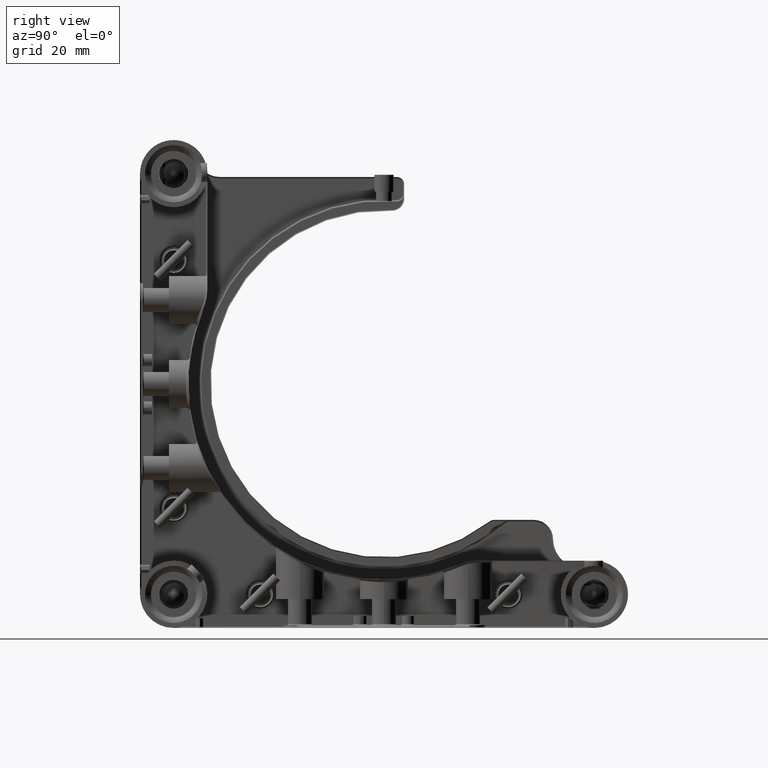
[diagram: clean part render]
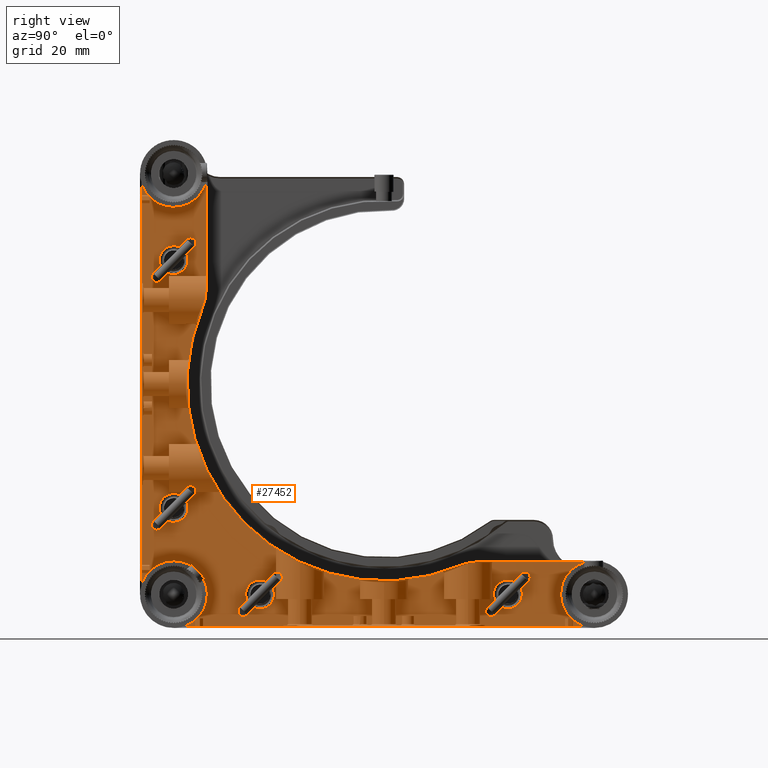
[diagram: same view with one face highlighted and labeled with its STEP entity id]
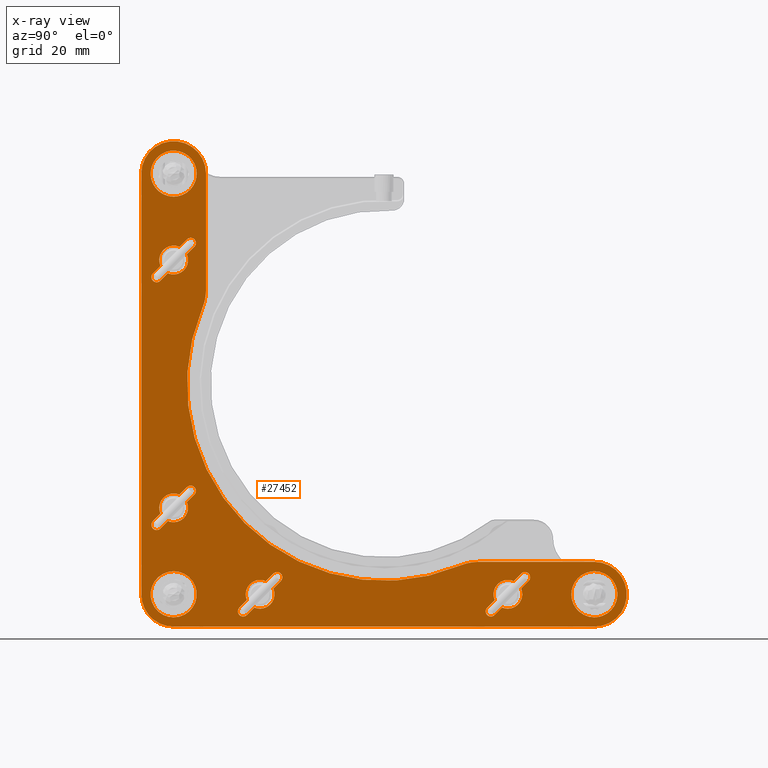
[diagram: x-ray of the same camera — body ghosted, the highlighted face saturated]
A machine part, right view. The second image highlights one B-rep face of the part: STEP entity #27452.
The next image is the same camera in x-ray: the body ghosted, the highlighted face saturated — about 0% of this face is hidden behind the body in this view.
In plain terms, the highlighted planar face has unit normal (1, -0, 0).
Its self-contained STEP definition (entity closure, byte-faithful):
#144 = CARTESIAN_POINT ( 'NONE',  ( 9.000000000000001776, -39.16495325955084184, 42.53464478704680118 ) ) ;
#155 = ORIENTED_EDGE ( 'NONE', *, *, #26908, .F. ) ;
#191 = CARTESIAN_POINT ( 'NONE',  ( 9.000000000000001776, -46.89339297775916293, 47.47687309403420386 ) ) ;
#276 = EDGE_CURVE ( 'NONE', #53183, #41756, #13680, .T. ) ;
#425 = DIRECTION ( 'NONE',  ( 0.000000000000000000, 0.7071067811865474617, 0.7071067811865474617 ) ) ;
#436 = LINE ( 'NONE', #41613, #51903 ) ;
#449 = CARTESIAN_POINT ( 'NONE',  ( 9.000000000000005329, 41.88248374071367408, -48.20335701574560971 ) ) ;
#457 = CARTESIAN_POINT ( 'NONE',  ( 8.999999999999998224, -47.42814838427305801, 46.96002419961592977 ) ) ;
#504 = ORIENTED_EDGE ( 'NONE', *, *, #23801, .F. ) ;
#543 = VERTEX_POINT ( 'NONE', #45472 ) ;
#716 = ORIENTED_EDGE ( 'NONE', *, *, #19475, .F. ) ;
#727 = CARTESIAN_POINT ( 'NONE',  ( 9.000000000000000000, 39.24483749748917205, -42.28274232388636733 ) ) ;
#880 = DIRECTION ( 'NONE',  ( -1.000000000000000000, -0.000000000000000000, -0.000000000000000000 ) ) ;
#1008 = CARTESIAN_POINT ( 'NONE',  ( 9.000000000000001776, 43.04521729324599022, -48.55787298063744828 ) ) ;
#1101 = CIRCLE ( 'NONE', #46046, 9.749999999999987566 ) ;
#1128 = EDGE_CURVE ( 'NONE', #4560, #4560, #19110, .T. ) ;
#1260 = CARTESIAN_POINT ( 'NONE',  ( 9.000000000000001776, 42.28267712745807927, -48.35513669995520303 ) ) ;
#1278 = EDGE_CURVE ( 'NONE', #40300, #49358, #27760, .T. ) ;
#1296 = EDGE_CURVE ( 'NONE', #34503, #28745, #15822, .T. ) ;
#1539 = CARTESIAN_POINT ( 'NONE',  ( 9.000000000000005329, 39.28939002376065304, -42.15765566731933944 ) ) ;
#1825 = EDGE_CURVE ( 'NONE', #3215, #42144, #35786, .T. ) ;
#2202 = DIRECTION ( 'NONE',  ( 1.000000000000000000, -0.000000000000000000, -0.000000000000000000 ) ) ;
#2221 = AXIS2_PLACEMENT_3D ( 'NONE', #42801, #22242, #21708 ) ;
#2368 = AXIS2_PLACEMENT_3D ( 'NONE', #16276, #44177, #44443 ) ;
#2472 = VERTEX_POINT ( 'NONE', #41372 ) ;
#2818 = CARTESIAN_POINT ( 'NONE',  ( 9.000000000000001776, -41.04228355337244238, 30.11335136523792499 ) ) ;
#2887 = CARTESIAN_POINT ( 'NONE',  ( 9.000000000000000000, 47.90625889879009236, -41.30900324797921996 ) ) ;
#2926 = EDGE_LOOP ( 'NONE', ( #44886, #34426, #21636, #14178, #10595, #19440, #504, #32431 ) ) ;
#3146 = CARTESIAN_POINT ( 'NONE',  ( 8.999999999957708496, -43.79999999999999005, -43.79999999999999716 ) ) ;
#3162 = CARTESIAN_POINT ( 'NONE',  ( 9.000000000000001776, -40.12312690596061771, 46.89339297774837689 ) ) ;
#3215 = VERTEX_POINT ( 'NONE', #17354 ) ;
#3260 = DIRECTION ( 'NONE',  ( -1.000000000000000000, -0.000000000000000000, -0.000000000000000000 ) ) ;
#3402 = EDGE_LOOP ( 'NONE', ( #33825, #34091, #31864, #716, #35022, #30516, #11598, #19675 ) ) ;
#3414 = DIRECTION ( 'NONE',  ( 0.000000000000000000, 0.000000000000000000, 1.000000000000000000 ) ) ;
#3415 = CARTESIAN_POINT ( 'NONE',  ( 9.000000000000001776, 48.60003370129511069, -44.10501534892983955 ) ) ;
#3470 = CARTESIAN_POINT ( 'NONE',  ( 9.000000000000003553, -48.23252553049448466, 41.95795846814047536 ) ) ;
#3530 = DIRECTION ( 'NONE',  ( 0.000000000000000000, 0.000000000000000000, -1.000000000000000000 ) ) ;
#3689 = CARTESIAN_POINT ( 'NONE',  ( 9.000000000000005329, -42.60049071363845030, 39.11233871830010855 ) ) ;
#3736 = CARTESIAN_POINT ( 'NONE',  ( 9.000000000000003553, -47.72515901195925636, 41.03593831967504002 ) ) ;
#3740 = AXIS2_PLACEMENT_3D ( 'NONE', #5998, #6270, #43374 ) ;
#3837 = CARTESIAN_POINT ( 'NONE',  ( 8.999999999957708496, 43.79999999999999005, -50.55000000003386873 ) ) ;
#3888 = ORIENTED_EDGE ( 'NONE', *, *, #47574, .F. ) ;
#3945 = CARTESIAN_POINT ( 'NONE',  ( 9.000000000000001776, -39.35207602064202348, 45.60453809197165498 ) ) ;
#3963 = CARTESIAN_POINT ( 'NONE',  ( 9.000000000000001776, 0.000000000000000000, -37.05000000000000426 ) ) ;
#3996 = CARTESIAN_POINT ( 'NONE',  ( 9.000000000000001776, -46.96002419962027119, 40.17185161573122798 ) ) ;
#4183 = EDGE_CURVE ( 'NONE', #9033, #37297, #1101, .T. ) ;
#4263 = CARTESIAN_POINT ( 'NONE',  ( 9.000000000000003553, -47.63647525525808391, 46.70368393890445446 ) ) ;
#4304 = CARTESIAN_POINT ( 'NONE',  ( 9.000000000000000000, 45.49578809074685637, -39.30948000422325350 ) ) ;
#4316 = VERTEX_POINT ( 'NONE', #46280 ) ;
#4363 = AXIS2_PLACEMENT_3D ( 'NONE', #48232, #27410, #10634 ) ;
#4526 = CARTESIAN_POINT ( 'NONE',  ( 9.000000000000003553, 40.12312690596768761, -46.89339297775919135 ) ) ;
#4560 = VERTEX_POINT ( 'NONE', #12960 ) ;
#4765 = CARTESIAN_POINT ( 'NONE',  ( 9.000000000000001776, -25.80000000000000071, -43.79999999999999716 ) ) ;
#4788 = CARTESIAN_POINT ( 'NONE',  ( 8.999999999999998224, 39.36747446950346330, -45.64204153185659152 ) ) ;
#4953 = EDGE_CURVE ( 'NONE', #37297, #20197, #27474, .T. ) ;
#5328 = EDGE_CURVE ( 'NONE', #31634, #16050, #38665, .T. ) ;
#5331 = ORIENTED_EDGE ( 'NONE', *, *, #1296, .F. ) ;
#5336 = CARTESIAN_POINT ( 'NONE',  ( 9.000000000000005329, 41.44984402866380435, -47.98613209606590146 ) ) ;
#5469 = DIRECTION ( 'NONE',  ( 0.000000000000000000, 0.000000000000000000, 1.000000000000000000 ) ) ;
#5592 = CARTESIAN_POINT ( 'NONE',  ( 9.000000000000001776, 39.04206804209258763, -43.04536631365352406 ) ) ;
#5799 = FACE_BOUND ( 'NONE', #3402, .T. ) ;
#5867 = CARTESIAN_POINT ( 'NONE',  ( 9.000000000000001776, 41.95795846814080932, -39.36747446950420226 ) ) ;
#5998 = CARTESIAN_POINT ( 'NONE',  ( 9.000000000000001776, 0.000000000000000000, 0.000000000000000000 ) ) ;
#6054 = CIRCLE ( 'NONE', #42388, 6.750000000034832581 ) ;
#6139 = EDGE_LOOP ( 'NONE', ( #3888, #32675 ) ) ;
#6195 = CARTESIAN_POINT ( 'NONE',  ( 9.000000000000001776, 21.48664863476207287, -46.55771644662753772 ) ) ;
#6268 = EDGE_LOOP ( 'NONE', ( #22048, #36378, #49631, #25477, #48532, #37163, #44828, #26243, #29286, #19680 ) ) ;
#6270 = DIRECTION ( 'NONE',  ( -1.000000000000000000, -0.000000000000000000, -0.000000000000000000 ) ) ;
#6303 = CARTESIAN_POINT ( 'NONE',  ( 9.000000000000001776, -43.79999999999999716, 48.59999999999998010 ) ) ;
#6399 = EDGE_CURVE ( 'NONE', #40895, #34503, #35959, .T. ) ;
#6549 = CARTESIAN_POINT ( 'NONE',  ( 9.000000000000001776, -43.79999999999997584, 25.79999999999998295 ) ) ;
#6625 = CIRCLE ( 'NONE', #42966, 3.000000000000002665 ) ;
#6685 = CARTESIAN_POINT ( 'NONE',  ( 9.000000000000001776, 47.72515901195745869, -41.03593831967326366 ) ) ;
#6761 = LINE ( 'NONE', #19496, #15424 ) ;
#6939 = VERTEX_POINT ( 'NONE', #47095 ) ;
#6953 = CARTESIAN_POINT ( 'NONE',  ( 9.000000000000003553, 46.96002419962433549, -40.17185161573529939 ) ) ;
#6999 = CARTESIAN_POINT ( 'NONE',  ( 8.999999999995324629, -50.55000000000465832, 43.79999999999999716 ) ) ;
#7228 = CARTESIAN_POINT ( 'NONE',  ( 9.000000000000003553, -39.24483749748919337, 42.28274232387133225 ) ) ;
#7325 = DIRECTION ( 'NONE',  ( 0.000000000000000000, 6.308085367188368350E-15, -1.000000000000000000 ) ) ;
#7476 = CARTESIAN_POINT ( 'NONE',  ( 9.000000000000001776, 47.98613209607501062, -46.15015597131931457 ) ) ;
#7489 = CARTESIAN_POINT ( 'NONE',  ( 9.000000000000003553, -39.96352474476218930, 40.89631606107098349 ) ) ;
#7536 = CARTESIAN_POINT ( 'NONE',  ( 9.000000000000001776, -45.49578809074411367, 39.30948000422324640 ) ) ;
#7705 = ORIENTED_EDGE ( 'NONE', *, *, #23499, .F. ) ;
#7757 = CARTESIAN_POINT ( 'NONE',  ( 9.000000000000003553, -39.44796540603163493, 45.82769825396186292 ) ) ;
#7800 = CARTESIAN_POINT ( 'NONE',  ( 9.000000000000000000, -47.86285425349738176, 46.35733753558471903 ) ) ;
#7818 = CARTESIAN_POINT ( 'NONE',  ( 9.000000000000001776, -43.79999999999999716, 38.99999999999998579 ) ) ;
#7858 = CIRCLE ( 'NONE', #45046, 1.100000000000003642 ) ;
#7887 = CARTESIAN_POINT ( 'NONE',  ( 8.999999999999998224, -37.80886699507391313, 15.85842288970792957 ) ) ;
#8013 = CARTESIAN_POINT ( 'NONE',  ( 9.000000000000001776, -39.36747446950244012, 45.64204153185502832 ) ) ;
#8062 = CARTESIAN_POINT ( 'NONE',  ( 8.999999999999998224, -48.29052809198631735, 45.49576763370798460 ) ) ;
#8165 = ORIENTED_EDGE ( 'NONE', *, *, #50066, .F. ) ;
#8324 = CARTESIAN_POINT ( 'NONE',  ( 9.000000000000001776, -48.15203459395956997, 41.77230174602532742 ) ) ;
#8496 = ORIENTED_EDGE ( 'NONE', *, *, #48875, .F. ) ;
#8589 = CARTESIAN_POINT ( 'NONE',  ( 9.000000000000005329, 39.96352474477053818, -40.89631606106048878 ) ) ;
#8595 = CARTESIAN_POINT ( 'NONE',  ( 9.000000000000001776, -44.99950928638634906, 48.48766128169988576 ) ) ;
#8813 = CARTESIAN_POINT ( 'NONE',  ( 9.000000000000001776, -48.11335136523793921, -28.55771644662753772 ) ) ;
#8828 = DIRECTION ( 'NONE',  ( 0.000000000000000000, 0.000000000000000000, -1.000000000000000000 ) ) ;
#9033 = VERTEX_POINT ( 'NONE', #7887 ) ;
#9402 = CARTESIAN_POINT ( 'NONE',  ( 9.000000000000003553, 42.15762074066132925, -48.31059615344170055 ) ) ;
#9410 = CARTESIAN_POINT ( 'NONE',  ( 9.000000000000001776, -25.80000000000000071, -43.79999999999999716 ) ) ;
#9570 = ORIENTED_EDGE ( 'NONE', *, *, #43843, .F. ) ;
#9670 = CARTESIAN_POINT ( 'NONE',  ( 9.000000000000001776, 39.34403521605486276, -45.58457882223946456 ) ) ;
#9720 = VERTEX_POINT ( 'NONE', #2818 ) ;
#9873 = FACE_BOUND ( 'NONE', #6139, .T. ) ;
#9891 = LINE ( 'NONE', #42926, #50022 ) ;
#10148 = FACE_BOUND ( 'NONE', #2926, .T. ) ;
#10350 = CARTESIAN_POINT ( 'NONE',  ( 8.999999999999994671, -46.80000000000001137, 19.62963321104090753 ) ) ;
#10424 = FACE_BOUND ( 'NONE', #43444, .T. ) ;
#10490 = AXIS2_PLACEMENT_3D ( 'NONE', #13662, #42094, #30722 ) ;
#10546 = DIRECTION ( 'NONE',  ( 0.000000000000000000, 0.7071067811865467956, 0.7071067811865483499 ) ) ;
#10595 = ORIENTED_EDGE ( 'NONE', *, *, #24481, .F. ) ;
#10634 = DIRECTION ( 'NONE',  ( 0.000000000000000000, -6.308085367188368350E-15, -1.000000000000000000 ) ) ;
#10670 = ORIENTED_EDGE ( 'NONE', *, *, #21203, .F. ) ;
#10737 = LINE ( 'NONE', #44031, #18830 ) ;
#10741 = DIRECTION ( 'NONE',  ( 0.000000000000000000, -6.308085367188427515E-15, -1.000000000000000000 ) ) ;
#10757 = CARTESIAN_POINT ( 'NONE',  ( 9.000000000000000000, 48.20908927408731870, -41.90188335450945800 ) ) ;
#10809 = LINE ( 'NONE', #14625, #24995 ) ;
#10842 = CARTESIAN_POINT ( 'NONE',  ( 9.000000000000001776, -42.60424202370613500, -23.04860710509574417 ) ) ;
#11029 = CARTESIAN_POINT ( 'NONE',  ( 9.000000000000001776, 45.82769825396555774, -48.15203459396317953 ) ) ;
#11056 = DIRECTION ( 'NONE',  ( 0.000000000000000000, -0.7071067811865460184, -0.7071067811865490160 ) ) ;
#11073 = VERTEX_POINT ( 'NONE', #7818 ) ;
#11259 = AXIS2_PLACEMENT_3D ( 'NONE', #33554, #46257, #36635 ) ;
#11302 = CARTESIAN_POINT ( 'NONE',  ( 9.000000000000003553, 47.31115672473098499, -40.52290536758920325 ) ) ;
#11512 = EDGE_CURVE ( 'NONE', #42702, #46870, #47155, .T. ) ;
#11561 = CARTESIAN_POINT ( 'NONE',  ( 9.000000000000001776, 48.59993259740977578, -43.18996930214026975 ) ) ;
#11577 = CARTESIAN_POINT ( 'NONE',  ( 9.000000000000001776, -40.90257084495528517, 39.97218537656482340 ) ) ;
#11598 = ORIENTED_EDGE ( 'NONE', *, *, #35204, .F. ) ;
#11619 = CARTESIAN_POINT ( 'NONE',  ( 9.000000000000003553, -45.31732287253473146, 39.24486330004474866 ) ) ;
#11821 = CARTESIAN_POINT ( 'NONE',  ( 9.000000000000003553, 48.27692062594665146, -45.53134199748117084 ) ) ;
#11880 = CARTESIAN_POINT ( 'NONE',  ( 9.000000000000001776, -48.24792397935637212, 41.99546190802598034 ) ) ;
#11913 = ORIENTED_EDGE ( 'NONE', *, *, #14301, .F. ) ;
#12081 = DIRECTION ( 'NONE',  ( 1.000000000000000000, -0.000000000000000000, -0.000000000000000000 ) ) ;
#12094 = CARTESIAN_POINT ( 'NONE',  ( 9.000000000000000000, -42.05197810077571319, 48.27043719876827055 ) ) ;
#12139 = CARTESIAN_POINT ( 'NONE',  ( 9.000000000000001776, -46.49441184835821872, 47.77323823138280545 ) ) ;
#12354 = CARTESIAN_POINT ( 'NONE',  ( 9.000000000000001776, -39.69374110120877219, 46.29099675201847219 ) ) ;
#12398 = CARTESIAN_POINT ( 'NONE',  ( 9.000000000000003553, -48.60003370129512490, 44.10501534893707287 ) ) ;
#12655 = CARTESIAN_POINT ( 'NONE',  ( 9.000000000000001776, 43.49489949656178567, -48.59999999999998721 ) ) ;
#12661 = CARTESIAN_POINT ( 'NONE',  ( 9.000000000000001776, -46.56406168032306425, 47.72515901196112509 ) ) ;
#12739 = DIRECTION ( 'NONE',  ( 0.000000000000000000, -3.154042683594203897E-15, -1.000000000000000000 ) ) ;
#12924 = CARTESIAN_POINT ( 'NONE',  ( 9.000000000000003553, 39.73714574649545739, -41.24266246442402206 ) ) ;
#12960 = CARTESIAN_POINT ( 'NONE',  ( 9.000000000000001776, -43.79999999999999716, -48.59999999999999432 ) ) ;
#13033 = EDGE_LOOP ( 'NONE', ( #51260 ) ) ;
#13069 = CARTESIAN_POINT ( 'NONE',  ( 9.000000000000001776, -43.79999999999997584, 25.79999999999998295 ) ) ;
#13166 = DIRECTION ( 'NONE',  ( -1.000000000000000000, -0.000000000000000000, -0.000000000000000000 ) ) ;
#13189 = CARTESIAN_POINT ( 'NONE',  ( 9.000000000000001776, 39.69540583706331205, -41.31023680278016741 ) ) ;
#13662 = CARTESIAN_POINT ( 'NONE',  ( 9.000000000000001776, 0.000000000000000000, 0.000000000000000000 ) ) ;
#13672 = DIRECTION ( 'NONE',  ( 0.000000000000000000, 0.000000000000000000, -1.000000000000000000 ) ) ;
#13680 = CIRCLE ( 'NONE', #42202, 1.099999999999989875 ) ;
#13747 = EDGE_CURVE ( 'NONE', #16050, #13915, #37622, .T. ) ;
#13763 = VECTOR ( 'NONE', #49502, 1000.000000000000114 ) ;
#13775 = CARTESIAN_POINT ( 'NONE',  ( 9.000000000000000000, 44.55478270675759234, -39.04212701936253183 ) ) ;
#13846 = VERTEX_POINT ( 'NONE', #6999 ) ;
#13915 = VERTEX_POINT ( 'NONE', #18942 ) ;
#14014 = CARTESIAN_POINT ( 'NONE',  ( 9.000000000000001776, 43.79999999999999716, -38.99999999999999289 ) ) ;
#14053 = CARTESIAN_POINT ( 'NONE',  ( 9.000000000000001776, -26.99575797629385221, -46.55139289490426080 ) ) ;
#14057 = CARTESIAN_POINT ( 'NONE',  ( 9.000000000000001776, 26.99575797629386287, -41.04860710509574062 ) ) ;
#14178 = ORIENTED_EDGE ( 'NONE', *, *, #1278, .F. ) ;
#14301 = EDGE_CURVE ( 'NONE', #19985, #53036, #51204, .T. ) ;
#14414 = DIRECTION ( 'NONE',  ( -1.000000000000000000, -0.000000000000000000, -0.000000000000000000 ) ) ;
#14485 = FACE_OUTER_BOUND ( 'NONE', #6268, .T. ) ;
#14526 = VERTEX_POINT ( 'NONE', #33708 ) ;
#14556 = CARTESIAN_POINT ( 'NONE',  ( 9.000000000000000000, 43.18944224894781314, -39.00000000000000000 ) ) ;
#14625 = CARTESIAN_POINT ( 'NONE',  ( 9.000000000000001776, -21.48664863476205866, -41.04228355337246370 ) ) ;
#14707 = DIRECTION ( 'NONE',  ( 0.000000000000000000, 0.000000000000000000, -1.000000000000000000 ) ) ;
#14827 = CARTESIAN_POINT ( 'NONE',  ( 9.000000000000000000, 41.77230174602620849, -39.44796540603664425 ) ) ;
#14835 = CARTESIAN_POINT ( 'NONE',  ( 9.000000000000007105, 47.90459416293620620, -46.28976319721872557 ) ) ;
#14842 = EDGE_CURVE ( 'NONE', #25425, #53183, #15807, .T. ) ;
#14982 = CARTESIAN_POINT ( 'NONE',  ( 9.000000000000000000, -42.28267712746526286, 48.35513669995520303 ) ) ;
#15036 = EDGE_CURVE ( 'NONE', #26585, #9033, #37386, .T. ) ;
#15095 = CARTESIAN_POINT ( 'NONE',  ( 9.000000000000005329, 45.93798152562526127, -39.49703878017812997 ) ) ;
#15218 = CARTESIAN_POINT ( 'NONE',  ( 9.000000000000001776, -41.04860710509571931, 26.99575797629383089 ) ) ;
#15363 = CARTESIAN_POINT ( 'NONE',  ( 9.000000000000003553, 46.29099675202127884, -47.90625889878725729 ) ) ;
#15410 = EDGE_CURVE ( 'NONE', #45511, #44009, #17256, .T. ) ;
#15424 = VECTOR ( 'NONE', #52777, 1000.000000000000114 ) ;
#15650 = CARTESIAN_POINT ( 'NONE',  ( 9.000000000000001776, -41.51817982242488370, 39.57155509360772783 ) ) ;
#15807 = LINE ( 'NONE', #28251, #40924 ) ;
#15822 = LINE ( 'NONE', #32326, #16509 ) ;
#15897 = CARTESIAN_POINT ( 'NONE',  ( 9.000000000000001776, 47.77323823137924563, -41.10558815163734891 ) ) ;
#15908 = CARTESIAN_POINT ( 'NONE',  ( 9.000000000000003553, -39.97218537655346182, 46.69742915503189096 ) ) ;
#15948 = CARTESIAN_POINT ( 'NONE',  ( 9.000000000000001776, -48.20335701575051246, 45.71751625927454654 ) ) ;
#16024 = VERTEX_POINT ( 'NONE', #36407 ) ;
#16050 = VERTEX_POINT ( 'NONE', #16073 ) ;
#16073 = CARTESIAN_POINT ( 'NONE',  ( 9.000000000000001776, 24.60424202370613855, -46.55139289490426080 ) ) ;
#16166 = CARTESIAN_POINT ( 'NONE',  ( 9.000000000000001776, -39.04206804209259474, 43.04536631361913379 ) ) ;
#16170 = DIRECTION ( 'NONE',  ( 0.000000000000000000, 6.308085367188447236E-15, -1.000000000000000000 ) ) ;
#16210 = CARTESIAN_POINT ( 'NONE',  ( 9.000000000000001776, -46.28976319722274013, 39.69540583706518078 ) ) ;
#16276 = CARTESIAN_POINT ( 'NONE',  ( 9.000000000000001776, 25.80000000000000071, -43.79999999999999716 ) ) ;
#16388 = EDGE_CURVE ( 'NONE', #20197, #13846, #21893, .T. ) ;
#16429 = CARTESIAN_POINT ( 'NONE',  ( 9.000000000000003553, -39.69540583707149040, 41.31023680276862819 ) ) ;
#16477 = CARTESIAN_POINT ( 'NONE',  ( 9.000000000000000000, -45.93798152560888326, 39.49703878016741498 ) ) ;
#16509 = VECTOR ( 'NONE', #28266, 1000.000000000000114 ) ;
#16609 = EDGE_CURVE ( 'NONE', #44009, #45511, #32025, .T. ) ;
#16690 = CARTESIAN_POINT ( 'NONE',  ( 9.000000000000001776, -39.39091072591180875, 45.69811664548876706 ) ) ;
#16738 = CARTESIAN_POINT ( 'NONE',  ( 9.000000000000003553, -46.29099675202959929, 47.90625889878285903 ) ) ;
#16773 = CARTESIAN_POINT ( 'NONE',  ( 9.000000000000001776, 45.54802189922312294, -39.32956280123094928 ) ) ;
#16993 = CARTESIAN_POINT ( 'NONE',  ( 9.000000000000000000, 40.70660702224071059, -40.12312690597153164 ) ) ;
#17000 = CARTESIAN_POINT ( 'NONE',  ( 9.000000000000003553, -47.31115672473301714, 40.52290536759124251 ) ) ;
#17193 = VECTOR ( 'NONE', #34695, 1000.000000000000114 ) ;
#17256 = B_SPLINE_CURVE_WITH_KNOTS ( 'NONE', 3,
 ( #34310, #12655, #1008, #34589, #1260, #9402, #25652, #45945, #42436, #449, #25386, #5336, #25120, #17269, #38119, #42706, #17531, #4526, #34044, #30259, #50527, #46752, #17796, #21873, #41885, #4788, #29173, #9670, #46211, #33782, #26196, #5592, #41629, #727, #1539, #22128, #38646, #21337, #50266, #18076, #45674, #13189, #12924, #8589, #21059, #37572, #16993, #29447, #29716, #30524, #34868, #51086, #14827, #18612, #5867, #30795, #38917, #39994, #14556, #14014 ),
 .UNSPECIFIED., .F., .F.,
 ( 4, 1, 1, 1, 1, 2, 2, 1, 2, 2, 2, 1, 2, 2, 1, 1, 1, 2, 2, 2, 1, 1, 1, 1, 2, 2, 1, 2, 2, 2, 1, 2, 2, 1, 1, 1, 2, 2, 4 ),
 ( 0.000000000000000000, 0.06250000000001212919, 0.09375000000001761091, 0.1093750000000210387, 0.1171875000000234396, 0.1210937500000239531, 0.1250000000000244804, 0.1562500000000277001, 0.1718750000000296430, 0.1875000000000315581, 0.2500000000000388023, 0.2812500000000419664, 0.2968750000000434652, 0.3125000000000449085, 0.3437500000000479616, 0.3593750000000485167, 0.3671875000000485723, 0.3710937500000487943, 0.3750000000000490719, 0.5000000000000479616, 0.5625000000000474065, 0.5937500000000472955, 0.6093750000000474065, 0.6171875000000481837, 0.6210937500000478506, 0.6250000000000474065, 0.6562500000000452971, 0.6718750000000436318, 0.6875000000000420775, 0.7500000000000349720, 0.7812500000000305311, 0.7968750000000273115, 0.8125000000000240918, 0.8437500000000178746, 0.8593750000000137668, 0.8671875000000117684, 0.8710937500000114353, 0.8750000000000109912, 1.000000000000000000 ),
 .UNSPECIFIED. ) ;
#17269 = CARTESIAN_POINT ( 'NONE',  ( 9.000000000000001776, 41.24266246442093831, -47.86285425350251188 ) ) ;
#17354 = CARTESIAN_POINT ( 'NONE',  ( 9.000000000000001776, -46.55139289490426080, -26.99575797629386642 ) ) ;
#17454 = VERTEX_POINT ( 'NONE', #19822 ) ;
#17531 = CARTESIAN_POINT ( 'NONE',  ( 9.000000000000000000, 40.28884327526594689, -47.07709463240663439 ) ) ;
#17727 = FACE_BOUND ( 'NONE', #13033, .T. ) ;
#17796 = CARTESIAN_POINT ( 'NONE',  ( 9.000000000000001776, 39.57155509360017476, -46.08182017755787285 ) ) ;
#17945 = DIRECTION ( 'NONE',  ( 0.000000000000000000, -0.7071067811865467956, -0.7071067811865483499 ) ) ;
#17993 = AXIS2_PLACEMENT_3D ( 'NONE', #36234, #24557, #16170 ) ;
#18031 = DIRECTION ( 'NONE',  ( 0.000000000000000000, -0.7071067811865474617, -0.7071067811865474617 ) ) ;
#18076 = CARTESIAN_POINT ( 'NONE',  ( 9.000000000000001776, 39.49703878016362069, -41.66201847439693040 ) ) ;
#18180 = AXIS2_PLACEMENT_3D ( 'NONE', #45214, #24653, #3530 ) ;
#18476 = DIRECTION ( 'NONE',  ( 0.000000000000000000, -6.308085367188447236E-15, -1.000000000000000000 ) ) ;
#18511 = CARTESIAN_POINT ( 'NONE',  ( 9.000000000000005329, -43.49489949657117194, 48.59999999999998721 ) ) ;
#18612 = CARTESIAN_POINT ( 'NONE',  ( 9.000000000000001776, 41.90188335450426393, -39.39091072591475040 ) ) ;
#18718 = VERTEX_POINT ( 'NONE', #29804 ) ;
#18719 = VECTOR ( 'NONE', #36199, 1000.000000000000114 ) ;
#18742 = DIRECTION ( 'NONE',  ( 0.000000000000000000, 2.846725704167071744E-15, 1.000000000000000000 ) ) ;
#18751 = CARTESIAN_POINT ( 'NONE',  ( 9.000000000000001776, -39.48664863476203379, 28.55771644662751996 ) ) ;
#18817 = CARTESIAN_POINT ( 'NONE',  ( 9.000000000000001776, -26.99575797629385221, -46.55139289490426080 ) ) ;
#18830 = VECTOR ( 'NONE', #27250, 1000.000000000000000 ) ;
#18883 = VERTEX_POINT ( 'NONE', #35760 ) ;
#18942 = CARTESIAN_POINT ( 'NONE',  ( 9.000000000000001776, 23.04228355337246370, -48.11335136523793921 ) ) ;
#19030 = DIRECTION ( 'NONE',  ( -1.000000000000000000, -0.000000000000000000, -0.000000000000000000 ) ) ;
#19110 = CIRCLE ( 'NONE', #49321, 4.799999999999998934 ) ;
#19158 = CARTESIAN_POINT ( 'NONE',  ( 9.000000000000001776, 47.86285425349741729, -46.35733753558579906 ) ) ;
#19161 = DIRECTION ( 'NONE',  ( 0.000000000000000000, 1.027984282055026450E-15, 1.000000000000000000 ) ) ;
#19440 = ORIENTED_EDGE ( 'NONE', *, *, #50786, .F. ) ;
#19475 = EDGE_CURVE ( 'NONE', #13915, #47896, #43920, .T. ) ;
#19477 = CARTESIAN_POINT ( 'NONE',  ( 9.000000000000001776, -44.10510050342882948, 38.99999999999997868 ) ) ;
#19496 = CARTESIAN_POINT ( 'NONE',  ( 9.000000000000001776, -44.99575797629385931, -28.55139289490426080 ) ) ;
#19675 = ORIENTED_EDGE ( 'NONE', *, *, #276, .F. ) ;
#19680 = ORIENTED_EDGE ( 'NONE', *, *, #30007, .F. ) ;
#19709 = CARTESIAN_POINT ( 'NONE',  ( 9.000000000000003553, -39.73714574649755349, 41.24266246442139305 ) ) ;
#19788 = ORIENTED_EDGE ( 'NONE', *, *, #25286, .F. ) ;
#19822 = CARTESIAN_POINT ( 'NONE',  ( 9.000000000000003553, 19.62963321104090753, -37.05000000000001137 ) ) ;
#19914 = CARTESIAN_POINT ( 'NONE',  ( 9.000000000000001776, -39.48664863476206222, -23.04228355337246370 ) ) ;
#19963 = CARTESIAN_POINT ( 'NONE',  ( 9.000000000000001776, 47.62781462343671990, -40.90257084495388540 ) ) ;
#19974 = CARTESIAN_POINT ( 'NONE',  ( 9.000000000000000000, -39.28939002376065304, 42.15765566731127478 ) ) ;
#19985 = VERTEX_POINT ( 'NONE', #53159 ) ;
#20018 = CARTESIAN_POINT ( 'NONE',  ( 8.999999999999998224, -44.41055775108736015, 48.59999999999997300 ) ) ;
#20197 = VERTEX_POINT ( 'NONE', #31686 ) ;
#20271 = CARTESIAN_POINT ( 'NONE',  ( 9.000000000000003553, -48.02844490639205333, 41.51817982243107252 ) ) ;
#20486 = CARTESIAN_POINT ( 'NONE',  ( 9.000000000000001776, -39.32307937405312970, 42.06865800251767240 ) ) ;
#20538 = CARTESIAN_POINT ( 'NONE',  ( 9.000000000000003553, -46.15015597132567393, 39.61386790392719348 ) ) ;
#20576 = EDGE_CURVE ( 'NONE', #28745, #42865, #20810, .T. ) ;
#20791 = EDGE_CURVE ( 'NONE', #18718, #35121, #39843, .T. ) ;
#20801 = CARTESIAN_POINT ( 'NONE',  ( 9.000000000000003553, -45.06546697822074776, 39.16499749250328222 ) ) ;
#20810 = CIRCLE ( 'NONE', #4363, 1.100000000000003642 ) ;
#21059 = CARTESIAN_POINT ( 'NONE',  ( 9.000000000000001776, 40.17185161572710683, -40.63997580037747781 ) ) ;
#21065 = CARTESIAN_POINT ( 'NONE',  ( 9.000000000000003553, -45.82769825397646457, 48.15203459395743124 ) ) ;
#21189 = CARTESIAN_POINT ( 'NONE',  ( 8.999999999999994671, -37.05000000000001137, 19.62963321104090042 ) ) ;
#21203 = EDGE_CURVE ( 'NONE', #46870, #9720, #49690, .T. ) ;
#21311 = LINE ( 'NONE', #3963, #25933 ) ;
#21337 = CARTESIAN_POINT ( 'NONE',  ( 9.000000000000001776, 39.32956280123197246, -42.05197810077527976 ) ) ;
#21437 = ORIENTED_EDGE ( 'NONE', *, *, #16609, .F. ) ;
#21636 = ORIENTED_EDGE ( 'NONE', *, *, #43559, .F. ) ;
#21708 = DIRECTION ( 'NONE',  ( 0.000000000000000000, 6.308085367188427515E-15, -1.000000000000000000 ) ) ;
#21873 = CARTESIAN_POINT ( 'NONE',  ( 9.000000000000003553, 39.44796540603456947, -45.82769825396636776 ) ) ;
#21893 = CIRCLE ( 'NONE', #43499, 6.750000000010913936 ) ;
#21924 = CARTESIAN_POINT ( 'NONE',  ( 9.000000000000001776, 24.60424202370613855, -46.55139289490426080 ) ) ;
#22014 = DIRECTION ( 'NONE',  ( 0.000000000000000000, 0.000000000000000000, -1.000000000000000000 ) ) ;
#22036 = VERTEX_POINT ( 'NONE', #25036 ) ;
#22048 = ORIENTED_EDGE ( 'NONE', *, *, #24741, .F. ) ;
#22100 = AXIS2_PLACEMENT_3D ( 'NONE', #13069, #880, #22014 ) ;
#22128 = CARTESIAN_POINT ( 'NONE',  ( 9.000000000000001776, 39.30947190801320801, -42.10423236629617350 ) ) ;
#22242 = DIRECTION ( 'NONE',  ( -1.000000000000000000, -0.000000000000000000, -0.000000000000000000 ) ) ;
#22278 = LINE ( 'NONE', #18751, #25892 ) ;
#22361 = VECTOR ( 'NONE', #29224, 1000.000000000000114 ) ;
#22467 = CARTESIAN_POINT ( 'NONE',  ( 9.000000000000001776, -24.60424202370614566, -41.04860710509574773 ) ) ;
#22508 = LINE ( 'NONE', #10842, #17193 ) ;
#22514 = CIRCLE ( 'NONE', #18180, 3.000000000000002665 ) ;
#22551 = CARTESIAN_POINT ( 'NONE',  ( 8.999999999990647481, -43.79999999999999716, 43.79999999999998295 ) ) ;
#22839 = CARTESIAN_POINT ( 'NONE',  ( 9.000000000000001776, -42.10421190925590196, 48.29051999577673371 ) ) ;
#23013 = CARTESIAN_POINT ( 'NONE',  ( 9.000000000000001776, -28.55771644662753062, -48.11335136523793921 ) ) ;
#23219 = CARTESIAN_POINT ( 'NONE',  ( 8.999999999999998224, 46.69742915504454572, -47.62781462344121053 ) ) ;
#23318 = CARTESIAN_POINT ( 'NONE',  ( 9.000000000000001776, -30.11335136523793210, -46.55771644662753062 ) ) ;
#23490 = CARTESIAN_POINT ( 'NONE',  ( 9.000000000000001776, 48.23252553049705682, -41.95795846814391439 ) ) ;
#23499 = EDGE_CURVE ( 'NONE', #47717, #3215, #32638, .T. ) ;
#23769 = CARTESIAN_POINT ( 'NONE',  ( 9.000000000000001776, -39.30947190801321511, 42.10423236629146260 ) ) ;
#23801 = EDGE_CURVE ( 'NONE', #35121, #16024, #10809, .T. ) ;
#23842 = CARTESIAN_POINT ( 'NONE',  ( 9.000000000000001776, 30.11335136523793210, -41.04228355337245659 ) ) ;
#23990 = CARTESIAN_POINT ( 'NONE',  ( 8.999999999978854248, -43.80000000000000426, -50.55000000002112870 ) ) ;
#24023 = CARTESIAN_POINT ( 'NONE',  ( 9.000000000000001776, 47.07709463240965420, -47.31115672473424638 ) ) ;
#24035 = CARTESIAN_POINT ( 'NONE',  ( 8.999999999999998224, -41.99546190802513479, 39.35207602064357246 ) ) ;
#24075 = CARTESIAN_POINT ( 'NONE',  ( 9.000000000000005329, -45.53135247547614028, 39.32308352089241055 ) ) ;
#24161 = EDGE_CURVE ( 'NONE', #4316, #40895, #22278, .T. ) ;
#24249 = CARTESIAN_POINT ( 'NONE',  ( 9.000000000000001776, -46.55139289490423948, 24.60424202370613145 ) ) ;
#24290 = CARTESIAN_POINT ( 'NONE',  ( 9.000000000000005329, 48.24792397935772215, -41.99546190802778511 ) ) ;
#24303 = CARTESIAN_POINT ( 'NONE',  ( 9.000000000000001776, -40.28884327526189679, 47.07709463240043846 ) ) ;
#24345 = CARTESIAN_POINT ( 'NONE',  ( 9.000000000000001776, -44.55478270673756924, 39.04212701936253183 ) ) ;
#24481 = EDGE_CURVE ( 'NONE', #51784, #40300, #51128, .T. ) ;
#24552 = CARTESIAN_POINT ( 'NONE',  ( 9.000000000000005329, -41.03593831967415895, 39.87484098804349486 ) ) ;
#24557 = DIRECTION ( 'NONE',  ( -1.000000000000000000, -0.000000000000000000, -0.000000000000000000 ) ) ;
#24598 = CARTESIAN_POINT ( 'NONE',  ( 9.000000000000003553, -46.70368393892098879, 39.96352474475844474 ) ) ;
#24653 = DIRECTION ( 'NONE',  ( -1.000000000000000000, -0.000000000000000000, -0.000000000000000000 ) ) ;
#24741 = EDGE_CURVE ( 'NONE', #2472, #17454, #21311, .T. ) ;
#24808 = CARTESIAN_POINT ( 'NONE',  ( 9.000000000000001776, -40.63997580038993362, 47.42814838428535751 ) ) ;
#24859 = CARTESIAN_POINT ( 'NONE',  ( 9.000000000000001776, -48.48759380204807456, 42.60032031705371480 ) ) ;
#24995 = VECTOR ( 'NONE', #31128, 1000.000000000000114 ) ;
#25036 = CARTESIAN_POINT ( 'NONE',  ( 9.000000000000001776, -46.55771644662752351, -30.11335136523793210 ) ) ;
#25089 = DIRECTION ( 'NONE',  ( 1.000000000000000000, -0.000000000000000000, -0.000000000000000000 ) ) ;
#25120 = CARTESIAN_POINT ( 'NONE',  ( 9.000000000000003553, 41.31023680277053955, -47.90459416293040107 ) ) ;
#25286 = EDGE_CURVE ( 'NONE', #40821, #39386, #29403, .T. ) ;
#25386 = CARTESIAN_POINT ( 'NONE',  ( 9.000000000000005329, 41.66201847437771022, -48.10296121982378992 ) ) ;
#25425 = VERTEX_POINT ( 'NONE', #14057 ) ;
#25477 = ORIENTED_EDGE ( 'NONE', *, *, #52262, .F. ) ;
#25652 = CARTESIAN_POINT ( 'NONE',  ( 9.000000000000001776, 42.10421190925363533, -48.29051999577672660 ) ) ;
#25729 = EDGE_CURVE ( 'NONE', #42865, #42702, #436, .T. ) ;
#25892 = VECTOR ( 'NONE', #17945, 1000.000000000000000 ) ;
#25933 = VECTOR ( 'NONE', #49436, 1000.000000000000000 ) ;
#25967 = CARTESIAN_POINT ( 'NONE',  ( 9.000000000000001776, 43.79999999999999716, -38.99999999999999289 ) ) ;
#26196 = CARTESIAN_POINT ( 'NONE',  ( 9.000000000000003553, 38.99996629870289411, -43.49498465108037237 ) ) ;
#26243 = ORIENTED_EDGE ( 'NONE', *, *, #4183, .F. ) ;
#26448 = LINE ( 'NONE', #50792, #26550 ) ;
#26550 = VECTOR ( 'NONE', #35116, 1000.000000000000000 ) ;
#26585 = VERTEX_POINT ( 'NONE', #32306 ) ;
#26749 = VECTOR ( 'NONE', #29422, 1000.000000000000000 ) ;
#26878 = DIRECTION ( 'NONE',  ( 1.000000000000000000, -0.000000000000000000, -0.000000000000000000 ) ) ;
#26908 = EDGE_CURVE ( 'NONE', #9720, #4316, #7858, .T. ) ;
#26978 = ORIENTED_EDGE ( 'NONE', *, *, #6399, .F. ) ;
#27016 = DIRECTION ( 'NONE',  ( 1.000000000000000000, -0.000000000000000000, -0.000000000000000000 ) ) ;
#27250 = DIRECTION ( 'NONE',  ( 0.000000000000000000, 1.000000000000000000, 0.000000000000000000 ) ) ;
#27399 = CARTESIAN_POINT ( 'NONE',  ( 9.000000000000001776, -43.79999999999999716, -25.80000000000000071 ) ) ;
#27410 = DIRECTION ( 'NONE',  ( -1.000000000000000000, -0.000000000000000000, -0.000000000000000000 ) ) ;
#27429 = CARTESIAN_POINT ( 'NONE',  ( 9.000000000000001776, 43.79999999999999716, -48.59999999999998721 ) ) ;
#27452 = ADVANCED_FACE ( 'NONE', ( #30464, #9873, #17727, #14485, #10424, #35062, #10148, #5799 ), #50736, .F. ) ;
#27455 = DIRECTION ( 'NONE',  ( 0.000000000000000000, 0.7071067811865474617, 0.7071067811865474617 ) ) ;
#27474 = LINE ( 'NONE', #52093, #50734 ) ;
#27547 = CARTESIAN_POINT ( 'NONE',  ( 9.000000000000001776, 48.29052809198631024, -45.49576763370626509 ) ) ;
#27574 = CARTESIAN_POINT ( 'NONE',  ( 9.000000000000001776, -50.54999999999998295, 0.000000000000000000 ) ) ;
#27760 = CIRCLE ( 'NONE', #37265, 1.099999999999996758 ) ;
#27816 = CARTESIAN_POINT ( 'NONE',  ( 9.000000000000003553, 48.27043719876811423, -45.54802189922486377 ) ) ;
#27828 = CARTESIAN_POINT ( 'NONE',  ( 9.000000000000005329, -39.11240619795591300, 44.99967968292938281 ) ) ;
#27938 = DIRECTION ( 'NONE',  ( -1.000000000000000000, -0.000000000000000000, -0.000000000000000000 ) ) ;
#28071 = CARTESIAN_POINT ( 'NONE',  ( 9.000000000000000000, 47.42814838426697577, -46.96002419961779140 ) ) ;
#28085 = CARTESIAN_POINT ( 'NONE',  ( 9.000000000000001776, -41.77230174602070178, 39.44796540604024671 ) ) ;
#28127 = CARTESIAN_POINT ( 'NONE',  ( 9.000000000000001776, -43.79999999999999716, 48.59999999999998010 ) ) ;
#28251 = CARTESIAN_POINT ( 'NONE',  ( 9.000000000000001776, 26.99575797629386287, -41.04860710509574773 ) ) ;
#28266 = DIRECTION ( 'NONE',  ( 0.000000000000000000, -0.7071067811865460184, -0.7071067811865490160 ) ) ;
#28341 = CARTESIAN_POINT ( 'NONE',  ( 9.000000000000000000, 45.58458414713201989, -48.25596267520592164 ) ) ;
#28398 = CARTESIAN_POINT ( 'NONE',  ( 9.000000000000000000, -48.27692062594663014, 45.53134199748204480 ) ) ;
#28450 = CARTESIAN_POINT ( 'NONE',  ( 9.000000000000001776, -40.26446609406724519, 29.33553390593271715 ) ) ;
#28473 = CARTESIAN_POINT ( 'NONE',  ( 9.000000000000001776, -22.26446609406725941, -40.26446609406725941 ) ) ;
#28617 = CARTESIAN_POINT ( 'NONE',  ( 9.000000000000003553, -41.10558815164285562, 39.82676176861801309 ) ) ;
#28661 = CARTESIAN_POINT ( 'NONE',  ( 9.000000000000003553, -47.90459416293467854, 46.28976319721914479 ) ) ;
#28745 = VERTEX_POINT ( 'NONE', #38077 ) ;
#28863 = CARTESIAN_POINT ( 'NONE',  ( 9.000000000000003553, -39.00006740259421889, 44.41003069787852553 ) ) ;
#28908 = CARTESIAN_POINT ( 'NONE',  ( 9.000000000000001776, -48.43504674044654479, 45.06535521295031543 ) ) ;
#29173 = CARTESIAN_POINT ( 'NONE',  ( 9.000000000000005329, 39.35207602064257770, -45.60453809197248631 ) ) ;
#29179 = CARTESIAN_POINT ( 'NONE',  ( 8.999999999999998224, -45.44237925933479971, 39.28940384655827245 ) ) ;
#29224 = DIRECTION ( 'NONE',  ( 0.000000000000000000, -0.7071067811865460184, -0.7071067811865490160 ) ) ;
#29286 = ORIENTED_EDGE ( 'NONE', *, *, #15036, .F. ) ;
#29403 = CIRCLE ( 'NONE', #11259, 3.000000000000006217 ) ;
#29422 = DIRECTION ( 'NONE',  ( 0.000000000000000000, 0.000000000000000000, -1.000000000000000000 ) ) ;
#29447 = CARTESIAN_POINT ( 'NONE',  ( 9.000000000000005329, 40.90257084495953421, -39.97218537656202386 ) ) ;
#29635 = ORIENTED_EDGE ( 'NONE', *, *, #15410, .F. ) ;
#29716 = CARTESIAN_POINT ( 'NONE',  ( 9.000000000000003553, 41.03593831967685901, -39.87484098804173271 ) ) ;
#29804 = CARTESIAN_POINT ( 'NONE',  ( 9.000000000000001776, -23.04228355337246370, -39.48664863476206222 ) ) ;
#30007 = EDGE_CURVE ( 'NONE', #17454, #26585, #41944, .T. ) ;
#30259 = CARTESIAN_POINT ( 'NONE',  ( 9.000000000000003553, 39.87484098803982135, -46.56406168032308557 ) ) ;
#30303 = CARTESIAN_POINT ( 'NONE',  ( 9.000000000000003553, 45.06546697823576864, -39.16499749250328932 ) ) ;
#30464 = FACE_BOUND ( 'NONE', #40678, .T. ) ;
#30516 = ORIENTED_EDGE ( 'NONE', *, *, #5328, .F. ) ;
#30518 = DIRECTION ( 'NONE',  ( -1.000000000000000000, -0.000000000000000000, -0.000000000000000000 ) ) ;
#30524 = CARTESIAN_POINT ( 'NONE',  ( 9.000000000000005329, 41.10558815164076663, -39.82676176861939155 ) ) ;
#30722 = DIRECTION ( 'NONE',  ( 0.000000000000000000, 0.000000000000000000, -1.000000000000000000 ) ) ;
#30795 = CARTESIAN_POINT ( 'NONE',  ( 9.000000000000001776, 41.99546190802616508, -39.35207602064294008 ) ) ;
#30835 = EDGE_CURVE ( 'NONE', #22036, #47717, #53229, .T. ) ;
#30959 = CARTESIAN_POINT ( 'NONE',  ( 9.000000000000003553, -42.53453302177927497, 48.43500250749669789 ) ) ;
#30969 = ORIENTED_EDGE ( 'NONE', *, *, #24161, .F. ) ;
#31119 = LINE ( 'NONE', #22467, #51794 ) ;
#31128 = DIRECTION ( 'NONE',  ( 0.000000000000000000, -0.7071067811865474617, -0.7071067811865474617 ) ) ;
#31328 = VERTEX_POINT ( 'NONE', #23990 ) ;
#31338 = CARTESIAN_POINT ( 'NONE',  ( 9.000000000000003553, 46.15015597133852765, -39.61386790393561341 ) ) ;
#31493 = CARTESIAN_POINT ( 'NONE',  ( 9.000000000000003553, -42.15762074066518039, 48.31059615344169345 ) ) ;
#31600 = CARTESIAN_POINT ( 'NONE',  ( 9.000000000000001776, 46.35733753558061210, -39.73714574649846298 ) ) ;
#31631 = LINE ( 'NONE', #27574, #26749 ) ;
#31634 = VERTEX_POINT ( 'NONE', #49043 ) ;
#31661 = CARTESIAN_POINT ( 'NONE',  ( 9.000000000000001776, -43.79999999999999716, 38.99999999999998579 ) ) ;
#31686 = CARTESIAN_POINT ( 'NONE',  ( 8.999999999984751753, -37.05000000001425775, 43.79999999999997584 ) ) ;
#31805 = CARTESIAN_POINT ( 'NONE',  ( 9.000000000000001776, -29.33553390593273136, -47.33553390593272781 ) ) ;
#31864 = ORIENTED_EDGE ( 'NONE', *, *, #43985, .F. ) ;
#31877 = CARTESIAN_POINT ( 'NONE',  ( 9.000000000000003553, 45.64204153185632862, -48.23252553049576363 ) ) ;
#31879 = CARTESIAN_POINT ( 'NONE',  ( 8.999999999957708496, 43.79999999999999716, -43.79999999999999005 ) ) ;
#32025 = B_SPLINE_CURVE_WITH_KNOTS ( 'NONE', 3,
 ( #25967, #46522, #13775, #30303, #50308, #33826, #4304, #37355, #16773, #32395, #15095, #31338, #52159, #31600, #52964, #6953, #11302, #36218, #19963, #6685, #15897, #2887, #36484, #48881, #10757, #23490, #24290, #40528, #44576, #11561, #3415, #40258, #35943, #32146, #48092, #27547, #11821, #27816, #48632, #47830, #7476, #14835, #19158, #35412, #28071, #24023, #52430, #23219, #39735, #40790, #15363, #51895, #11029, #52700, #31877, #44316, #28341, #44842, #40003, #35683 ),
 .UNSPECIFIED., .F., .F.,
 ( 4, 1, 1, 1, 1, 2, 2, 1, 2, 2, 2, 1, 2, 2, 1, 1, 1, 2, 2, 2, 1, 1, 1, 1, 2, 2, 1, 2, 2, 2, 1, 2, 2, 1, 1, 1, 2, 2, 4 ),
 ( 0.000000000000000000, 0.06250000000000840994, 0.09375000000001203204, 0.1093750000000131423, 0.1171875000000137113, 0.1210937500000146549, 0.1250000000000155986, 0.1562500000000167089, 0.1718750000000175693, 0.1875000000000184297, 0.2500000000000193179, 0.2812500000000193179, 0.2968750000000202616, 0.3125000000000211497, 0.3437500000000229816, 0.3593750000000235922, 0.3671875000000242584, 0.3710937500000249800, 0.3750000000000256462, 0.5000000000000353051, 0.5625000000000408562, 0.5937500000000429656, 0.6093750000000438538, 0.6171875000000441869, 0.6210937500000444089, 0.6250000000000445199, 0.6562500000000415223, 0.6718750000000399680, 0.6875000000000384137, 0.7500000000000290878, 0.7812500000000248690, 0.7968750000000227596, 0.8125000000000206501, 0.8437500000000164313, 0.8593750000000148770, 0.8671875000000143219, 0.8710937500000137668, 0.8750000000000131006, 1.000000000000000000 ),
 .UNSPECIFIED. ) ;
#32146 = CARTESIAN_POINT ( 'NONE',  ( 9.000000000000005329, 48.35516250250931591, -45.31725767612147138 ) ) ;
#32159 = CARTESIAN_POINT ( 'NONE',  ( 9.000000000000001776, -40.52290536759021222, 40.28884327527014619 ) ) ;
#32276 = EDGE_CURVE ( 'NONE', #6939, #18883, #6625, .T. ) ;
#32306 = CARTESIAN_POINT ( 'NONE',  ( 9.000000000000007105, 15.85842288970792957, -37.80886699507392024 ) ) ;
#32326 = CARTESIAN_POINT ( 'NONE',  ( 9.000000000000001776, -44.99575797629383800, 23.04860710509572286 ) ) ;
#32395 = CARTESIAN_POINT ( 'NONE',  ( 9.000000000000003553, 45.71751625928803264, -39.39664298425549305 ) ) ;
#32408 = CARTESIAN_POINT ( 'NONE',  ( 9.000000000000005329, -38.99996629870290121, 43.49498465106072587 ) ) ;
#32431 = ORIENTED_EDGE ( 'NONE', *, *, #20791, .F. ) ;
#32454 = AXIS2_PLACEMENT_3D ( 'NONE', #37013, #25089, #49431 ) ;
#32603 = CARTESIAN_POINT ( 'NONE',  ( 9.000000000000001776, -30.11335136523793210, -46.55771644662753062 ) ) ;
#32638 = LINE ( 'NONE', #39987, #18719 ) ;
#32666 = CARTESIAN_POINT ( 'NONE',  ( 9.000000000000001776, -41.44984402867434881, 47.98613209607277952 ) ) ;
#32675 = ORIENTED_EDGE ( 'NONE', *, *, #40359, .F. ) ;
#32716 = CARTESIAN_POINT ( 'NONE',  ( 9.000000000000000000, -46.69742915504033931, 47.62781462344247529 ) ) ;
#32895 = B_SPLINE_CURVE_WITH_KNOTS ( 'NONE', 3,
 ( #6303, #18511, #51515, #30959, #14982, #31493, #22839, #49420, #12094, #44854, #41049, #32666, #48643, #44330, #53492, #24808, #24303, #3162, #15908, #33191, #49156, #12354, #49671, #7757, #16690, #8013, #3945, #36495, #27828, #28863, #32408, #16166, #144, #7228, #19974, #23769, #20486, #40272, #37002, #41315, #44589, #16429, #19709, #7489, #36231, #32159, #52713, #11577, #24552, #28617, #36743, #15650, #28085, #32931, #48897, #24035, #45361, #3689, #40540, #52975 ),
 .UNSPECIFIED., .F., .F.,
 ( 4, 1, 1, 1, 1, 2, 2, 1, 2, 2, 2, 1, 2, 2, 1, 1, 1, 2, 2, 2, 1, 1, 1, 1, 2, 2, 1, 2, 2, 2, 1, 2, 2, 1, 1, 1, 2, 2, 4 ),
 ( 0.000000000000000000, 0.06250000000001459943, 0.09375000000002119138, 0.1093750000000238004, 0.1171875000000244110, 0.1210937500000253964, 0.1250000000000263678, 0.1562500000000354439, 0.1718750000000393574, 0.1875000000000432987, 0.2500000000000593969, 0.2812500000000670575, 0.2968750000000712208, 0.3125000000000754397, 0.3437500000000827671, 0.3593750000000860423, 0.3671875000000870970, 0.3710937500000870415, 0.3750000000000869305, 0.5000000000000872635, 0.5625000000000867084, 0.5937500000000859313, 0.6093750000000852651, 0.6171875000000850431, 0.6210937500000854872, 0.6250000000000859313, 0.6562500000000823785, 0.6718750000000802691, 0.6875000000000780487, 0.7500000000000700551, 0.7812500000000660583, 0.7968750000000645040, 0.8125000000000628386, 0.8437500000000596190, 0.8593750000000582867, 0.8671875000000568434, 0.8710937500000560663, 0.8750000000000552891, 1.000000000000000000 ),
 .UNSPECIFIED. ) ;
#32931 = CARTESIAN_POINT ( 'NONE',  ( 9.000000000000001776, -41.90188335450104518, 39.39091072591681808 ) ) ;
#32978 = CARTESIAN_POINT ( 'NONE',  ( 9.000000000000001776, -48.27043719876831318, 45.54802189922479272 ) ) ;
#33135 = CARTESIAN_POINT ( 'NONE',  ( 9.000000000000001776, 28.55771644662754127, -39.48664863476206932 ) ) ;
#33165 = AXIS2_PLACEMENT_3D ( 'NONE', #27399, #27938, #39866 ) ;
#33191 = CARTESIAN_POINT ( 'NONE',  ( 9.000000000000001776, -39.87484098803626864, 46.56406168031765702 ) ) ;
#33236 = CARTESIAN_POINT ( 'NONE',  ( 9.000000000000001776, -47.98613209607262320, 46.15015597132000380 ) ) ;
#33535 = VERTEX_POINT ( 'NONE', #46769 ) ;
#33554 = CARTESIAN_POINT ( 'NONE',  ( 9.000000000000001776, -43.79999999999999716, -25.80000000000000071 ) ) ;
#33708 = CARTESIAN_POINT ( 'NONE',  ( 9.000000000000001776, -43.79999999999999716, 48.59999999999998010 ) ) ;
#33782 = CARTESIAN_POINT ( 'NONE',  ( 9.000000000000005329, 39.00006740259422600, -44.41003069783925383 ) ) ;
#33825 = ORIENTED_EDGE ( 'NONE', *, *, #14842, .F. ) ;
#33826 = CARTESIAN_POINT ( 'NONE',  ( 9.000000000000003553, 45.44237925933953193, -39.28940384655831508 ) ) ;
#33949 = ORIENTED_EDGE ( 'NONE', *, *, #11512, .F. ) ;
#34044 = CARTESIAN_POINT ( 'NONE',  ( 9.000000000000003553, 39.97218537655901827, -46.69742915504039615 ) ) ;
#34091 = ORIENTED_EDGE ( 'NONE', *, *, #40014, .F. ) ;
#34257 = CARTESIAN_POINT ( 'NONE',  ( 9.000000000000001776, -43.79999999999999716, -43.79999999999999716 ) ) ;
#34310 = CARTESIAN_POINT ( 'NONE',  ( 9.000000000000001776, 43.79999999999999716, -48.59999999999998721 ) ) ;
#34426 = ORIENTED_EDGE ( 'NONE', *, *, #32276, .F. ) ;
#34497 = CARTESIAN_POINT ( 'NONE',  ( 9.000000000000001776, -48.11335136523792499, 23.04228355337245659 ) ) ;
#34503 = VERTEX_POINT ( 'NONE', #44194 ) ;
#34548 = CARTESIAN_POINT ( 'NONE',  ( 9.000000000000001776, -21.48664863476205866, -41.04228355337246370 ) ) ;
#34589 = CARTESIAN_POINT ( 'NONE',  ( 9.000000000000001776, 42.53453302176692574, -48.43500250749669078 ) ) ;
#34695 = DIRECTION ( 'NONE',  ( 0.000000000000000000, 0.7071067811865474617, 0.7071067811865474617 ) ) ;
#34868 = CARTESIAN_POINT ( 'NONE',  ( 9.000000000000001776, 41.30900324797240586, -39.69374110121258781 ) ) ;
#34917 = CARTESIAN_POINT ( 'NONE',  ( 9.000000000000001776, 43.79999999999999716, -38.99999999999999289 ) ) ;
#35022 = ORIENTED_EDGE ( 'NONE', *, *, #13747, .F. ) ;
#35062 = FACE_BOUND ( 'NONE', #38464, .T. ) ;
#35116 = DIRECTION ( 'NONE',  ( 0.000000000000000000, -0.7071067811865467956, -0.7071067811865483499 ) ) ;
#35121 = VERTEX_POINT ( 'NONE', #34548 ) ;
#35139 = DIRECTION ( 'NONE',  ( 0.000000000000000000, -1.156482317317870344E-15, -1.000000000000000000 ) ) ;
#35204 = EDGE_CURVE ( 'NONE', #41756, #31634, #9891, .T. ) ;
#35412 = CARTESIAN_POINT ( 'NONE',  ( 9.000000000000003553, 47.63647525525800575, -46.70368393890024805 ) ) ;
#35683 = CARTESIAN_POINT ( 'NONE',  ( 9.000000000000001776, 43.79999999999999716, -48.59999999999998721 ) ) ;
#35760 = CARTESIAN_POINT ( 'NONE',  ( 9.000000000000001776, -24.60424202370613855, -41.04860710509574062 ) ) ;
#35786 = CIRCLE ( 'NONE', #33165, 3.000000000000006217 ) ;
#35934 = VECTOR ( 'NONE', #425, 1000.000000000000114 ) ;
#35943 = CARTESIAN_POINT ( 'NONE',  ( 9.000000000000001776, 48.43504674044653768, -45.06535521294082969 ) ) ;
#35959 = CIRCLE ( 'NONE', #22100, 3.000000000000002665 ) ;
#36156 = EDGE_CURVE ( 'NONE', #18883, #18718, #31119, .T. ) ;
#36199 = DIRECTION ( 'NONE',  ( 0.000000000000000000, 0.7071067811865506814, 0.7071067811865443531 ) ) ;
#36218 = CARTESIAN_POINT ( 'NONE',  ( 9.000000000000003553, 47.47687309402690659, -40.70660702223353411 ) ) ;
#36231 = CARTESIAN_POINT ( 'NONE',  ( 9.000000000000001776, -40.17185161573330276, 40.63997580037339930 ) ) ;
#36234 = CARTESIAN_POINT ( 'NONE',  ( 9.000000000000001776, 22.26446609406726296, -47.33553390593273491 ) ) ;
#36378 = ORIENTED_EDGE ( 'NONE', *, *, #40652, .F. ) ;
#36402 = CARTESIAN_POINT ( 'NONE',  ( 9.000000000000001776, -44.99575797629385931, -28.55139289490426080 ) ) ;
#36407 = CARTESIAN_POINT ( 'NONE',  ( 9.000000000000001776, -23.04860710509574417, -42.60424202370614921 ) ) ;
#36484 = CARTESIAN_POINT ( 'NONE',  ( 9.000000000000000000, 48.02844490640175223, -41.51817982244410388 ) ) ;
#36495 = CARTESIAN_POINT ( 'NONE',  ( 9.000000000000000000, -39.34403521605484855, 45.58457882223971325 ) ) ;
#36635 = DIRECTION ( 'NONE',  ( 0.000000000000000000, 0.000000000000000000, -1.000000000000000000 ) ) ;
#36743 = CARTESIAN_POINT ( 'NONE',  ( 9.000000000000005329, -41.30900324796823497, 39.69374110121533761 ) ) ;
#36786 = CARTESIAN_POINT ( 'NONE',  ( 9.000000000000003553, -46.35733753558061920, 39.73714574649846298 ) ) ;
#37002 = CARTESIAN_POINT ( 'NONE',  ( 9.000000000000001776, -39.39664298425654465, 41.88248374071147140 ) ) ;
#37013 = CARTESIAN_POINT ( 'NONE',  ( 9.000000000000003553, 19.62963321104090753, -46.80000000000001137 ) ) ;
#37050 = CARTESIAN_POINT ( 'NONE',  ( 9.000000000000003553, -48.20908927408306255, 41.90188335450373813 ) ) ;
#37163 = ORIENTED_EDGE ( 'NONE', *, *, #16388, .F. ) ;
#37265 = AXIS2_PLACEMENT_3D ( 'NONE', #31805, #48293, #48808 ) ;
#37297 = VERTEX_POINT ( 'NONE', #21189 ) ;
#37319 = CARTESIAN_POINT ( 'NONE',  ( 9.000000000000003553, -47.07709463240661307, 47.31115672473514877 ) ) ;
#37355 = CARTESIAN_POINT ( 'NONE',  ( 9.000000000000003553, 45.53135247547756137, -39.32308352089242476 ) ) ;
#37386 = CIRCLE ( 'NONE', #3740, 41.00000000000001421 ) ;
#37572 = CARTESIAN_POINT ( 'NONE',  ( 9.000000000000003553, 40.52290536759331729, -40.28884327526812825 ) ) ;
#37578 = CARTESIAN_POINT ( 'NONE',  ( 9.000000000000001776, -48.25596478394503208, 42.01542117776079266 ) ) ;
#37622 = LINE ( 'NONE', #21924, #22361 ) ;
#38067 = CARTESIAN_POINT ( 'NONE',  ( 9.000000000000001776, -41.04860710509574062, -24.60424202370613855 ) ) ;
#38077 = CARTESIAN_POINT ( 'NONE',  ( 9.000000000000001776, -46.55771644662750930, 21.48664863476204090 ) ) ;
#38119 = CARTESIAN_POINT ( 'NONE',  ( 9.000000000000001776, 40.89631606107283091, -47.63647525523749948 ) ) ;
#38464 = EDGE_LOOP ( 'NONE', ( #8165, #40183, #7705, #45494, #8496, #19788, #9570, #11913 ) ) ;
#38646 = CARTESIAN_POINT ( 'NONE',  ( 9.000000000000001776, 39.32307937405311549, -42.06865800252008114 ) ) ;
#38665 = CIRCLE ( 'NONE', #2368, 3.000000000000002665 ) ;
#38678 = VERTEX_POINT ( 'NONE', #3837 ) ;
#38700 = LINE ( 'NONE', #6195, #50759 ) ;
#38861 = DIRECTION ( 'NONE',  ( -0.000000000000000000, -0.000000000000000000, 1.000000000000000000 ) ) ;
#38917 = CARTESIAN_POINT ( 'NONE',  ( 9.000000000000001776, 42.01541585286720704, -39.34403732479409399 ) ) ;
#39220 = CARTESIAN_POINT ( 'NONE',  ( 9.000000000000001776, -42.60424202370613500, -23.04860710509574417 ) ) ;
#39386 = VERTEX_POINT ( 'NONE', #36402 ) ;
#39405 = CARTESIAN_POINT ( 'NONE',  ( 9.000000000000001776, 21.48664863476207287, -46.55771644662753772 ) ) ;
#39735 = CARTESIAN_POINT ( 'NONE',  ( 9.000000000000003553, 46.56406168032572168, -47.72515901196033639 ) ) ;
#39843 = CIRCLE ( 'NONE', #46733, 1.099999999999996758 ) ;
#39866 = DIRECTION ( 'NONE',  ( 0.000000000000000000, 0.000000000000000000, -1.000000000000000000 ) ) ;
#39987 = CARTESIAN_POINT ( 'NONE',  ( 9.000000000000001776, -48.11335136523793921, -28.55771644662753772 ) ) ;
#39994 = CARTESIAN_POINT ( 'NONE',  ( 9.000000000000005329, 42.60049071364881712, -39.11233871830010855 ) ) ;
#40003 = CARTESIAN_POINT ( 'NONE',  ( 9.000000000000003553, 44.41055775107703596, -48.60000000000000853 ) ) ;
#40014 = EDGE_CURVE ( 'NONE', #33535, #25425, #22514, .T. ) ;
#40183 = ORIENTED_EDGE ( 'NONE', *, *, #1825, .F. ) ;
#40258 = CARTESIAN_POINT ( 'NONE',  ( 9.000000000000001776, 48.55793195790391081, -44.55463368636436883 ) ) ;
#40272 = CARTESIAN_POINT ( 'NONE',  ( 9.000000000000003553, -39.32956280123081427, 42.05197810077694953 ) ) ;
#40300 = VERTEX_POINT ( 'NONE', #23013 ) ;
#40359 = EDGE_CURVE ( 'NONE', #11073, #14526, #43250, .T. ) ;
#40528 = CARTESIAN_POINT ( 'NONE',  ( 9.000000000000000000, 48.25596478394503919, -42.01542117776001106 ) ) ;
#40540 = CARTESIAN_POINT ( 'NONE',  ( 9.000000000000003553, -43.18944224893743922, 38.99999999999999289 ) ) ;
#40578 = CIRCLE ( 'NONE', #53538, 3.000000000000002665 ) ;
#40583 = CARTESIAN_POINT ( 'NONE',  ( 9.000000000000000000, -47.77323823138203096, 41.10558815164107216 ) ) ;
#40652 = EDGE_CURVE ( 'NONE', #38678, #2472, #43305, .T. ) ;
#40678 = EDGE_LOOP ( 'NONE', ( #21437, #29635 ) ) ;
#40790 = CARTESIAN_POINT ( 'NONE',  ( 9.000000000000000000, 46.49441184836238961, -47.77323823138062409 ) ) ;
#40819 = CARTESIAN_POINT ( 'NONE',  ( 9.000000000000001776, -42.60424202370612790, 28.55139289490424304 ) ) ;
#40821 = VERTEX_POINT ( 'NONE', #38067 ) ;
#40844 = CARTESIAN_POINT ( 'NONE',  ( 9.000000000000001776, -45.64204153186015134, 48.23252553049371016 ) ) ;
#40895 = VERTEX_POINT ( 'NONE', #15218 ) ;
#40924 = VECTOR ( 'NONE', #27455, 1000.000000000000114 ) ;
#41049 = CARTESIAN_POINT ( 'NONE',  ( 9.000000000000001776, -41.66201847439112527, 48.10296121983255091 ) ) ;
#41095 = CARTESIAN_POINT ( 'NONE',  ( 9.000000000000003553, -45.54802189922428113, 39.32956280123169535 ) ) ;
#41315 = CARTESIAN_POINT ( 'NONE',  ( 9.000000000000001776, -39.49703878017999159, 41.66201847437386618 ) ) ;
#41368 = CARTESIAN_POINT ( 'NONE',  ( 9.000000000000001776, -48.10296121983233064, 45.93798152560167836 ) ) ;
#41372 = CARTESIAN_POINT ( 'NONE',  ( 8.999999999978852472, 43.79999999999999005, -37.04999999997886562 ) ) ;
#41613 = CARTESIAN_POINT ( 'NONE',  ( 9.000000000000001776, -48.11335136523793210, 23.04228355337245304 ) ) ;
#41629 = CARTESIAN_POINT ( 'NONE',  ( 9.000000000000003553, 39.16495325955084184, -42.53464478707258678 ) ) ;
#41636 = CARTESIAN_POINT ( 'NONE',  ( 9.000000000000001776, -45.58458414713170015, 48.25596267520589322 ) ) ;
#41756 = VERTEX_POINT ( 'NONE', #23842 ) ;
#41885 = CARTESIAN_POINT ( 'NONE',  ( 9.000000000000001776, 39.39091072591354248, -45.69811664549141028 ) ) ;
#41944 = CIRCLE ( 'NONE', #32454, 9.749999999999987566 ) ;
#42094 = DIRECTION ( 'NONE',  ( 1.000000000000000000, -0.000000000000000000, 0.000000000000000000 ) ) ;
#42144 = VERTEX_POINT ( 'NONE', #39220 ) ;
#42202 = AXIS2_PLACEMENT_3D ( 'NONE', #51480, #14414, #18476 ) ;
#42388 = AXIS2_PLACEMENT_3D ( 'NONE', #3146, #12081, #3414 ) ;
#42436 = CARTESIAN_POINT ( 'NONE',  ( 9.000000000000005329, 42.05197810077667953, -48.27043719876892425 ) ) ;
#42702 = VERTEX_POINT ( 'NONE', #24249 ) ;
#42706 = CARTESIAN_POINT ( 'NONE',  ( 9.000000000000001776, 40.63997580038186186, -47.42814838427300828 ) ) ;
#42801 = CARTESIAN_POINT ( 'NONE',  ( 9.000000000000001776, -47.33553390593272781, -29.33553390593273136 ) ) ;
#42865 = VERTEX_POINT ( 'NONE', #34497 ) ;
#42926 = CARTESIAN_POINT ( 'NONE',  ( 9.000000000000001776, 30.11335136523793210, -41.04228355337245659 ) ) ;
#42962 = CARTESIAN_POINT ( 'NONE',  ( 9.000000000000001776, -40.26446609406726651, -22.26446609406725941 ) ) ;
#42966 = AXIS2_PLACEMENT_3D ( 'NONE', #9410, #50272, #35139 ) ;
#43028 = DIRECTION ( 'NONE',  ( 0.000000000000000000, 0.7071067811865483499, 0.7071067811865467956 ) ) ;
#43250 = B_SPLINE_CURVE_WITH_KNOTS ( 'NONE', 3,
 ( #31661, #19477, #24345, #20801, #11619, #29179, #7536, #24075, #41095, #48939, #16477, #20538, #16210, #36786, #24598, #3996, #17000, #49467, #45679, #3736, #40583, #44897, #20271, #8324, #37050, #3470, #11880, #37578, #24859, #53277, #12398, #45410, #28908, #53544, #49201, #8062, #28398, #32978, #15948, #41368, #33236, #28661, #7800, #4263, #457, #37319, #191, #32716, #12661, #12139, #16738, #49719, #21065, #48682, #40844, #44636, #41636, #8595, #20018, #28127 ),
 .UNSPECIFIED., .F., .F.,
 ( 4, 1, 1, 1, 1, 2, 2, 1, 2, 2, 2, 1, 2, 2, 1, 1, 1, 2, 2, 2, 1, 1, 1, 1, 2, 2, 1, 2, 2, 2, 1, 2, 2, 1, 1, 1, 2, 2, 4 ),
 ( 0.000000000000000000, 0.06249999999999875100, 0.09374999999999741873, 0.1093749999999974465, 0.1171874999999981265, 0.1210937499999978073, 0.1249999999999974742, 0.1562499999999985567, 0.1718749999999985012, 0.1874999999999984734, 0.2499999999999986677, 0.2812499999999997224, 0.2968750000000006106, 0.3125000000000014988, 0.3437500000000041078, 0.3593750000000045519, 0.3671875000000044409, 0.3710937500000041078, 0.3750000000000038303, 0.4999999999999921174, 0.5624999999999855671, 0.5937499999999815703, 0.6093749999999800160, 0.6171874999999800160, 0.6210937499999799050, 0.6249999999999799050, 0.6562499999999785727, 0.6718749999999782396, 0.6874999999999779066, 0.7499999999999779066, 0.7812499999999769074, 0.7968749999999765743, 0.8124999999999761302, 0.8437499999999762412, 0.8593749999999756861, 0.8671874999999757971, 0.8710937499999757971, 0.8749999999999759082, 1.000000000000000000 ),
 .UNSPECIFIED. ) ;
#43305 = CIRCLE ( 'NONE', #44146, 6.750000000034825476 ) ;
#43374 = DIRECTION ( 'NONE',  ( 0.000000000000000000, 0.000000000000000000, -1.000000000000000000 ) ) ;
#43444 = EDGE_LOOP ( 'NONE', ( #10670, #33949, #44539, #52045, #5331, #26978, #30969, #155 ) ) ;
#43499 = AXIS2_PLACEMENT_3D ( 'NONE', #22551, #26878, #5469 ) ;
#43559 = EDGE_CURVE ( 'NONE', #49358, #6939, #43886, .T. ) ;
#43843 = EDGE_CURVE ( 'NONE', #53036, #40821, #26448, .T. ) ;
#43886 = LINE ( 'NONE', #23318, #13763 ) ;
#43920 = CIRCLE ( 'NONE', #17993, 1.099999999999989875 ) ;
#43985 = EDGE_CURVE ( 'NONE', #47896, #33535, #38700, .T. ) ;
#44009 = VERTEX_POINT ( 'NONE', #34917 ) ;
#44031 = CARTESIAN_POINT ( 'NONE',  ( 9.000000000000001776, 0.000000000000000000, -50.54999999999998295 ) ) ;
#44146 = AXIS2_PLACEMENT_3D ( 'NONE', #31879, #27016, #19161 ) ;
#44177 = DIRECTION ( 'NONE',  ( -1.000000000000000000, -0.000000000000000000, -0.000000000000000000 ) ) ;
#44194 = CARTESIAN_POINT ( 'NONE',  ( 9.000000000000001776, -44.99575797629383800, 23.04860710509572286 ) ) ;
#44316 = CARTESIAN_POINT ( 'NONE',  ( 9.000000000000000000, 45.60453809197232999, -48.24792397935702581 ) ) ;
#44330 = CARTESIAN_POINT ( 'NONE',  ( 9.000000000000001776, -41.24266246442401496, 47.86285425350452272 ) ) ;
#44443 = DIRECTION ( 'NONE',  ( 0.000000000000000000, 3.469446951953611033E-15, -1.000000000000000000 ) ) ;
#44539 = ORIENTED_EDGE ( 'NONE', *, *, #25729, .F. ) ;
#44576 = CARTESIAN_POINT ( 'NONE',  ( 9.000000000000001776, 48.48759380204809588, -42.60032031707853406 ) ) ;
#44582 = AXIS2_PLACEMENT_3D ( 'NONE', #6549, #19030, #14707 ) ;
#44589 = CARTESIAN_POINT ( 'NONE',  ( 8.999999999999998224, -39.61386790393706292, 41.44984402866079165 ) ) ;
#44636 = CARTESIAN_POINT ( 'NONE',  ( 9.000000000000003553, -45.60453809197436215, 48.24792397935596711 ) ) ;
#44828 = ORIENTED_EDGE ( 'NONE', *, *, #4953, .F. ) ;
#44842 = CARTESIAN_POINT ( 'NONE',  ( 9.000000000000005329, 44.99950928637601066, -48.48766128169989287 ) ) ;
#44854 = CARTESIAN_POINT ( 'NONE',  ( 9.000000000000003553, -41.88248374072133373, 48.20335701575059062 ) ) ;
#44886 = ORIENTED_EDGE ( 'NONE', *, *, #36156, .F. ) ;
#44897 = CARTESIAN_POINT ( 'NONE',  ( 9.000000000000001776, -47.90625889878452881, 41.30900324797176637 ) ) ;
#44972 = DIRECTION ( 'NONE',  ( -1.000000000000000000, -0.000000000000000000, -0.000000000000000000 ) ) ;
#45046 = AXIS2_PLACEMENT_3D ( 'NONE', #28450, #3260, #7325 ) ;
#45214 = CARTESIAN_POINT ( 'NONE',  ( 9.000000000000001776, 25.80000000000000071, -43.79999999999999716 ) ) ;
#45361 = CARTESIAN_POINT ( 'NONE',  ( 9.000000000000000000, -42.01541585286751967, 39.34403732479407267 ) ) ;
#45410 = CARTESIAN_POINT ( 'NONE',  ( 9.000000000000001776, -48.55793195790391081, 44.55463368637701649 ) ) ;
#45472 = CARTESIAN_POINT ( 'NONE',  ( 8.999999999957708496, -50.55000000003386873, -43.80000000000000426 ) ) ;
#45494 = ORIENTED_EDGE ( 'NONE', *, *, #30835, .F. ) ;
#45511 = VERTEX_POINT ( 'NONE', #27429 ) ;
#45674 = CARTESIAN_POINT ( 'NONE',  ( 9.000000000000001776, 39.61386790392420210, -41.44984402867891049 ) ) ;
#45679 = CARTESIAN_POINT ( 'NONE',  ( 9.000000000000001776, -47.62781462343952654, 40.90257084495668494 ) ) ;
#45945 = CARTESIAN_POINT ( 'NONE',  ( 9.000000000000005329, 42.06864752452270295, -48.27691647910759798 ) ) ;
#46046 = AXIS2_PLACEMENT_3D ( 'NONE', #10350, #2202, #18742 ) ;
#46211 = CARTESIAN_POINT ( 'NONE',  ( 9.000000000000003553, 39.11240619795592011, -44.99967968293780274 ) ) ;
#46257 = DIRECTION ( 'NONE',  ( -1.000000000000000000, -0.000000000000000000, -0.000000000000000000 ) ) ;
#46280 = CARTESIAN_POINT ( 'NONE',  ( 9.000000000000001776, -39.48664863476203379, 28.55771644662751640 ) ) ;
#46522 = CARTESIAN_POINT ( 'NONE',  ( 9.000000000000001776, 44.10510050344027633, -38.99999999999998579 ) ) ;
#46634 = VECTOR ( 'NONE', #11056, 1000.000000000000114 ) ;
#46733 = AXIS2_PLACEMENT_3D ( 'NONE', #28473, #44972, #12739 ) ;
#46752 = CARTESIAN_POINT ( 'NONE',  ( 9.000000000000000000, 39.69374110121103882, -46.29099675202191122 ) ) ;
#46769 = CARTESIAN_POINT ( 'NONE',  ( 9.000000000000001776, 23.04860710509574773, -44.99575797629386642 ) ) ;
#46870 = VERTEX_POINT ( 'NONE', #48669 ) ;
#47095 = CARTESIAN_POINT ( 'NONE',  ( 9.000000000000001776, -28.55139289490425725, -44.99575797629385221 ) ) ;
#47155 = CIRCLE ( 'NONE', #44582, 3.000000000000002665 ) ;
#47171 = EDGE_CURVE ( 'NONE', #31328, #38678, #10737, .T. ) ;
#47574 = EDGE_CURVE ( 'NONE', #14526, #11073, #32895, .T. ) ;
#47717 = VERTEX_POINT ( 'NONE', #8813 ) ;
#47830 = CARTESIAN_POINT ( 'NONE',  ( 9.000000000000001776, 48.10296121983537176, -45.93798152560079018 ) ) ;
#47896 = VERTEX_POINT ( 'NONE', #39405 ) ;
#48092 = CARTESIAN_POINT ( 'NONE',  ( 9.000000000000001776, 48.31060997623853126, -45.44234433268486129 ) ) ;
#48232 = CARTESIAN_POINT ( 'NONE',  ( 9.000000000000001776, -47.33553390593271359, 22.26446609406725230 ) ) ;
#48293 = DIRECTION ( 'NONE',  ( -1.000000000000000000, -0.000000000000000000, -0.000000000000000000 ) ) ;
#48532 = ORIENTED_EDGE ( 'NONE', *, *, #50663, .F. ) ;
#48632 = CARTESIAN_POINT ( 'NONE',  ( 9.000000000000003553, 48.20335701575223197, -45.71751625927404206 ) ) ;
#48643 = CARTESIAN_POINT ( 'NONE',  ( 9.000000000000001776, -41.31023680277724708, 47.90459416293476380 ) ) ;
#48669 = CARTESIAN_POINT ( 'NONE',  ( 9.000000000000001776, -42.60424202370612790, 28.55139289490424304 ) ) ;
#48682 = CARTESIAN_POINT ( 'NONE',  ( 9.000000000000001776, -45.69811664549732200, 48.20908927408178357 ) ) ;
#48723 = AXIS2_PLACEMENT_3D ( 'NONE', #42962, #30518, #10741 ) ;
#48808 = DIRECTION ( 'NONE',  ( 0.000000000000000000, 6.308085367188407793E-15, -1.000000000000000000 ) ) ;
#48875 = EDGE_CURVE ( 'NONE', #39386, #22036, #6761, .T. ) ;
#48881 = CARTESIAN_POINT ( 'NONE',  ( 9.000000000000001776, 48.15203459396690278, -41.77230174603513291 ) ) ;
#48897 = CARTESIAN_POINT ( 'NONE',  ( 9.000000000000001776, -41.95795846813886953, 39.36747446950543861 ) ) ;
#48939 = CARTESIAN_POINT ( 'NONE',  ( 9.000000000000005329, -45.71751625927866769, 39.39664298424937527 ) ) ;
#49043 = CARTESIAN_POINT ( 'NONE',  ( 9.000000000000001776, 28.55139289490425725, -42.60424202370613500 ) ) ;
#49156 = CARTESIAN_POINT ( 'NONE',  ( 9.000000000000001776, -39.82676176862131712, 46.49441184836376806 ) ) ;
#49201 = CARTESIAN_POINT ( 'NONE',  ( 9.000000000000003553, -48.31060997623853837, 45.44234433268781714 ) ) ;
#49321 = AXIS2_PLACEMENT_3D ( 'NONE', #34257, #51028, #13672 ) ;
#49358 = VERTEX_POINT ( 'NONE', #32603 ) ;
#49420 = CARTESIAN_POINT ( 'NONE',  ( 9.000000000000001776, -42.06864752452384693, 48.27691647910755535 ) ) ;
#49431 = DIRECTION ( 'NONE',  ( 0.000000000000000000, 0.000000000000000000, 1.000000000000000000 ) ) ;
#49436 = DIRECTION ( 'NONE',  ( -0.000000000000000000, -1.000000000000000000, -0.000000000000000000 ) ) ;
#49467 = CARTESIAN_POINT ( 'NONE',  ( 9.000000000000001776, -47.47687309403046640, 40.70660702223706551 ) ) ;
#49502 = DIRECTION ( 'NONE',  ( 0.000000000000000000, 0.7071067811865474617, 0.7071067811865474617 ) ) ;
#49631 = ORIENTED_EDGE ( 'NONE', *, *, #47171, .F. ) ;
#49671 = CARTESIAN_POINT ( 'NONE',  ( 9.000000000000001776, -39.57155509359625967, 46.08182017755184745 ) ) ;
#49690 = LINE ( 'NONE', #40819, #35934 ) ;
#49701 = DIRECTION ( 'NONE',  ( 0.000000000000000000, 0.7071067811865499042, 0.7071067811865452413 ) ) ;
#49719 = CARTESIAN_POINT ( 'NONE',  ( 9.000000000000001776, -46.08182017757134474, 48.02844490638914010 ) ) ;
#50022 = VECTOR ( 'NONE', #18031, 1000.000000000000114 ) ;
#50066 = EDGE_CURVE ( 'NONE', #42144, #19985, #22508, .T. ) ;
#50266 = CARTESIAN_POINT ( 'NONE',  ( 9.000000000000001776, 39.39664298424720812, -41.88248374072465907 ) ) ;
#50272 = DIRECTION ( 'NONE',  ( -1.000000000000000000, -0.000000000000000000, -0.000000000000000000 ) ) ;
#50308 = CARTESIAN_POINT ( 'NONE',  ( 9.000000000000005329, 45.31732287254349245, -39.24486330004478418 ) ) ;
#50527 = CARTESIAN_POINT ( 'NONE',  ( 9.000000000000001776, 39.82676176862019446, -46.49441184836206276 ) ) ;
#50663 = EDGE_CURVE ( 'NONE', #13846, #543, #31631, .T. ) ;
#50734 = VECTOR ( 'NONE', #38861, 1000.000000000000000 ) ;
#50736 = PLANE ( 'NONE',  #10490 ) ;
#50759 = VECTOR ( 'NONE', #43028, 1000.000000000000000 ) ;
#50786 = EDGE_CURVE ( 'NONE', #16024, #51784, #40578, .T. ) ;
#50792 = CARTESIAN_POINT ( 'NONE',  ( 9.000000000000001776, -39.48664863476206222, -23.04228355337246370 ) ) ;
#51028 = DIRECTION ( 'NONE',  ( -1.000000000000000000, -0.000000000000000000, -0.000000000000000000 ) ) ;
#51086 = CARTESIAN_POINT ( 'NONE',  ( 9.000000000000001776, 41.51817982243221650, -39.57155509360294587 ) ) ;
#51128 = LINE ( 'NONE', #14053, #46634 ) ;
#51204 = CIRCLE ( 'NONE', #48723, 1.099999999999993427 ) ;
#51260 = ORIENTED_EDGE ( 'NONE', *, *, #1128, .F. ) ;
#51480 = CARTESIAN_POINT ( 'NONE',  ( 9.000000000000001776, 29.33553390593273491, -40.26446609406725941 ) ) ;
#51515 = CARTESIAN_POINT ( 'NONE',  ( 9.000000000000001776, -43.04521729326241086, 48.55787298063744828 ) ) ;
#51784 = VERTEX_POINT ( 'NONE', #18817 ) ;
#51794 = VECTOR ( 'NONE', #10546, 1000.000000000000000 ) ;
#51895 = CARTESIAN_POINT ( 'NONE',  ( 9.000000000000001776, 46.08182017755677151, -48.02844490639682817 ) ) ;
#51903 = VECTOR ( 'NONE', #49701, 1000.000000000000114 ) ;
#52045 = ORIENTED_EDGE ( 'NONE', *, *, #20576, .F. ) ;
#52093 = CARTESIAN_POINT ( 'NONE',  ( 9.000000000000001776, -37.05000000000001137, 0.000000000000000000 ) ) ;
#52159 = CARTESIAN_POINT ( 'NONE',  ( 9.000000000000005329, 46.28976319723094690, -39.69540583707055248 ) ) ;
#52262 = EDGE_CURVE ( 'NONE', #543, #31328, #6054, .T. ) ;
#52430 = CARTESIAN_POINT ( 'NONE',  ( 9.000000000000001776, 46.89339297776447779, -47.47687309403263356 ) ) ;
#52700 = CARTESIAN_POINT ( 'NONE',  ( 9.000000000000001776, 45.69811664549092001, -48.20908927408515154 ) ) ;
#52713 = CARTESIAN_POINT ( 'NONE',  ( 9.000000000000003553, -40.70660702223530336, 40.12312690597506304 ) ) ;
#52777 = DIRECTION ( 'NONE',  ( 0.000000000000000000, -0.7071067811865460184, -0.7071067811865490160 ) ) ;
#52964 = CARTESIAN_POINT ( 'NONE',  ( 9.000000000000000000, 46.70368393892096748, -39.96352474475842342 ) ) ;
#52975 = CARTESIAN_POINT ( 'NONE',  ( 9.000000000000001776, -43.79999999999999716, 38.99999999999998579 ) ) ;
#53036 = VERTEX_POINT ( 'NONE', #19914 ) ;
#53159 = CARTESIAN_POINT ( 'NONE',  ( 9.000000000000001776, -41.04228355337245659, -21.48664863476206577 ) ) ;
#53183 = VERTEX_POINT ( 'NONE', #33135 ) ;
#53229 = CIRCLE ( 'NONE', #2221, 1.099999999999993427 ) ;
#53277 = CARTESIAN_POINT ( 'NONE',  ( 9.000000000000000000, -48.59993259740977578, 43.18996930212579599 ) ) ;
#53492 = CARTESIAN_POINT ( 'NONE',  ( 9.000000000000003553, -40.89631606106048167, 47.63647525522942772 ) ) ;
#53538 = AXIS2_PLACEMENT_3D ( 'NONE', #4765, #13166, #8828 ) ;
#53544 = CARTESIAN_POINT ( 'NONE',  ( 9.000000000000000000, -48.35516250250928749, 45.31725767612695677 ) ) ;